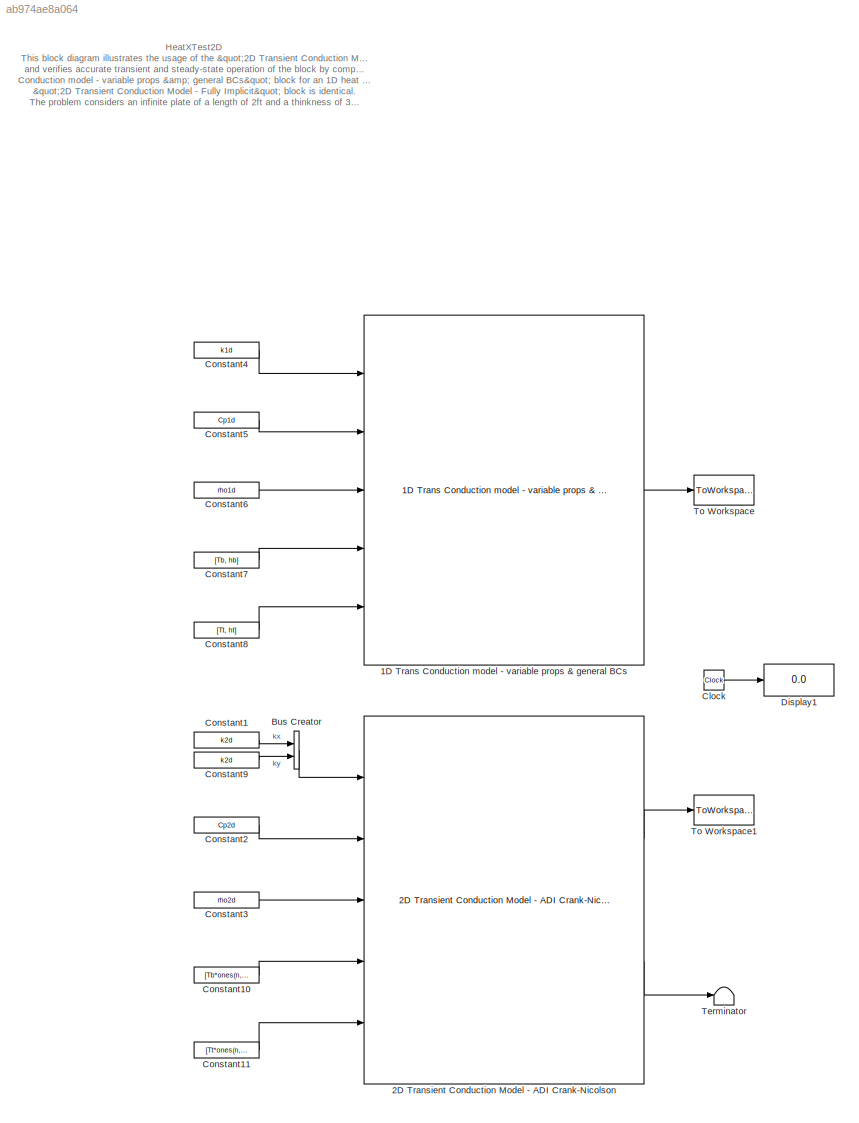
MODEL slx_ab974ae8a064
KIND model
CONFIG AbsTol = auto
CONFIG FixedStep = dt
CONFIG MaxStep = auto
CONFIG MinStep = auto
CONFIG RelTol = 1e-3
CONFIG SampleTimeConstraint = Unconstrained
CONFIG Solver = FixedStepDiscrete
CONFIG SolverMode = Auto
CONFIG SolverName = FixedStepDiscrete
CONFIG StartTime = 0.0
CONFIG StopTime = tsim
BLOCK [Reference] 1D Trans Conduction model - variable props & general BCs  REF=lib_Conduction_HeatX1DVarPropsAndGenBCs/1D Trans Conduction model - variable props & general BCs
  BN_M = double(gcb)
  Ports = [5, 1]
  SourceBlock = lib_Conduction_HeatX1DVarPropsAndGenBCs/1D Trans Conduction model - variable props & general BCs
  SourceType = TSAT: 1-D Trans Conduction Model - Variable Props + Generic BCs Block
  T0_M = T01d
  a_M = off
  condin_M = off
  condout_M = off
  convin_M = on
  convout_M = on
  dt_M = dt
  radin_M = off
  radout_M = off
  x_M = y0
BLOCK [Reference] 2D Transient Conduction Model - ADI Crank-Nicolson  REF=lib_Conduction_2DCondADI/2D Transient Conduction Model - ADI Crank-Nicolson
  BN_M = double(gcb)
  Ports = [5, 2]
  SourceBlock = lib_Conduction_2DCondADI/2D Transient Conduction Model - ADI Crank-Nicolson
  SourceType = TSAT: 2-D Transient Conduction Model - ADI Crank-Nicolson Block
  T0_M = T02d
  condB_M = off
  condL_M = off
  condR_M = off
  condT_M = off
  convB_M = on
  convL_M = off
  convR_M = off
  convT_M = on
  dt_M = dt
  radB_M = off
  radL_M = off
  radR_M = off
  radT_M = off
  shape_M = Planar in both directions
  x_M = x
  y_M = y0
BLOCK [BusCreator] Bus Creator
  DisplayOption = bar
  Inputs = 2
  Ports = [2, 1]
BLOCK [Clock] Clock
BLOCK [Constant] Constant1
  Value = k2d
BLOCK [Constant] Constant10
  Value = [Tb*ones(n,1) hb*ones(n,1)]
BLOCK [Constant] Constant11
  Value = [Tt*ones(n,1) ht*ones(n,1)]
BLOCK [Constant] Constant2
  Value = Cp2d
BLOCK [Constant] Constant3
  Value = rho2d
BLOCK [Constant] Constant4
  Value = k1d
BLOCK [Constant] Constant5
  Value = Cp1d
BLOCK [Constant] Constant6
  Value = rho1d
BLOCK [Constant] Constant7
  Value = [Tb, hb]
BLOCK [Constant] Constant8
  Value = [Tt, ht]
BLOCK [Constant] Constant9
  Value = k2d
BLOCK [Display] Display1
  Decimation = 1
  Ports = [1]
BLOCK [Terminator] Terminator
BLOCK [ToWorkspace] To Workspace
  FixptAsFi = on
  MaxDataPoints = inf
  Ports = [1]
  SampleTime = -1
  Save2DSignal = 3-D array (concatenate along third dimension)
  SaveFormat = Timeseries
  VariableName = T1d
BLOCK [ToWorkspace] To Workspace1
  FixptAsFi = on
  MaxDataPoints = inf
  Ports = [1]
  SampleTime = -1
  Save2DSignal = 3-D array (concatenate along third dimension)
  SaveFormat = Timeseries
  VariableName = T2d
ANNOTATION (root): HeatXTest2D This block diagram illustrates the usage of the "2D Transient Conduction Model - ADI Crank-Nicolson" block and verifies accurate transient and steady-state operation of the block by comparing with the solution of the "1D Trans Conduction model - variable props & general BCs" block for an 1D heat transfer problem. Note that the usage of the "2D Transient Conduction Model - Fully Implici...<+636ch>
LINE 1D Trans Conduction model - variable props & general BCs:1 -> To Workspace:1
LINE 2D Transient Conduction Model - ADI Crank-Nicolson:1 -> To Workspace1:1
LINE 2D Transient Conduction Model - ADI Crank-Nicolson:2 -> Terminator:1
LINE Bus Creator:1 -> 2D Transient Conduction Model - ADI Crank-Nicolson:1
LINE Clock:1 -> Display1:1
LINE Constant10:1 -> 2D Transient Conduction Model - ADI Crank-Nicolson:4
LINE Constant11:1 -> 2D Transient Conduction Model - ADI Crank-Nicolson:5
LINE Constant1:1 -> Bus Creator:1
LINE Constant2:1 -> 2D Transient Conduction Model - ADI Crank-Nicolson:2
LINE Constant3:1 -> 2D Transient Conduction Model - ADI Crank-Nicolson:3
LINE Constant4:1 -> 1D Trans Conduction model - variable props & general BCs:1
LINE Constant5:1 -> 1D Trans Conduction model - variable props & general BCs:2
LINE Constant6:1 -> 1D Trans Conduction model - variable props & general BCs:3
LINE Constant7:1 -> 1D Trans Conduction model - variable props & general BCs:4
LINE Constant8:1 -> 1D Trans Conduction model - variable props & general BCs:5
LINE Constant9:1 -> Bus Creator:2
